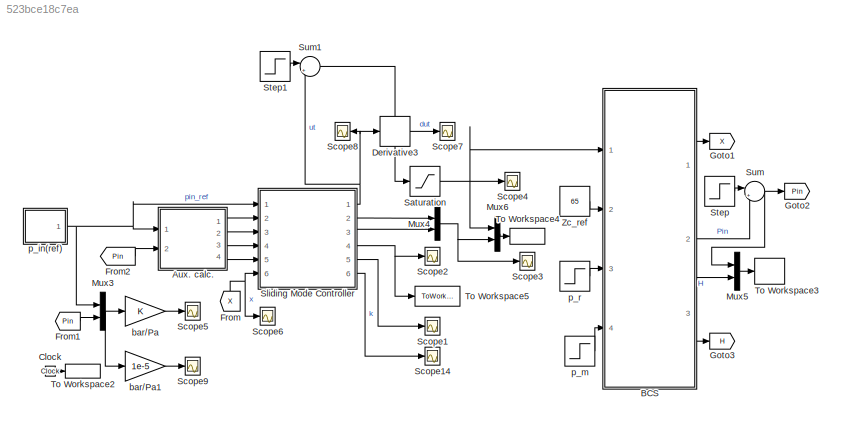
MODEL slx_523bce18c7ea
KIND model
CONFIG AbsTol = auto
CONFIG EnableMultiTasking = off
CONFIG FixedStep = 0.1
CONFIG MaxStep = auto
CONFIG MinStep = auto
CONFIG RelTol = 1e-3
CONFIG SampleTimeConstraint = Unconstrained
CONFIG Solver = FixedStepAuto
CONFIG SolverName = FixedStepAuto
CONFIG StartTime = 0.0
CONFIG StopTime = 10000
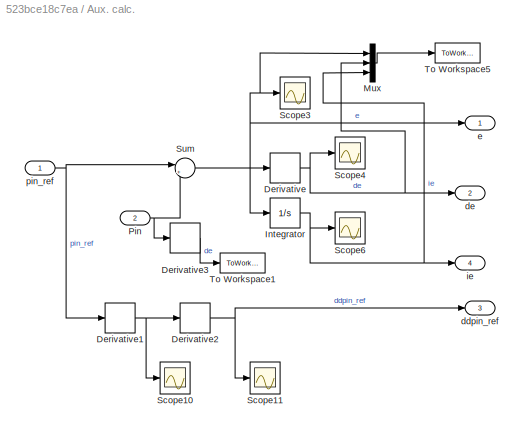
BLOCK [SubSystem] Aux. calc.
  Ports = [2, 4]
  RequestExecContextInheritance = off
BLOCK [Derivative] Aux. calc./Derivative
BLOCK [Derivative] Aux. calc./Derivative1
BLOCK [Derivative] Aux. calc./Derivative2
BLOCK [Derivative] Aux. calc./Derivative3
BLOCK [Integrator] Aux. calc./Integrator
  Ports = [1, 1]
BLOCK [Mux] Aux. calc./Mux
  DisplayOption = bar
  Inputs = 3
  Ports = [3, 1]
BLOCK [Inport] Aux. calc./Pin
  Port = 2
BLOCK [Scope] Aux. calc./Scope10
  Floating = off
  NumInputPorts = 1
  Ports = [1]
  ScopeSpecificationString = Simulink.scopes.TimeScopeBlockCfg('CurrentConfiguration', extmgr.ConfigurationSet(extmgr.Configuration('Core','General UI',true),extmgr.Configuration('Core','Source UI',true),extmgr.Configuration('Sources','WiredSimulink',true,'DataLoggingVariableName','ScopeData2'),extmgr.Configuration('Visuals','Time Domain',true,'SerializedDisplays',{struct('MinYLimReal','-624.99999','MaxYLimReal','624.99999','...<+1455ch>
BLOCK [Scope] Aux. calc./Scope11
  Floating = off
  NumInputPorts = 1
  Ports = [1]
  ScopeSpecificationString = Simulink.scopes.TimeScopeBlockCfg('CurrentConfiguration', extmgr.ConfigurationSet(extmgr.Configuration('Core','General UI',true),extmgr.Configuration('Core','Source UI',true),extmgr.Configuration('Sources','WiredSimulink',true,'DataLoggingVariableName','ScopeData3'),extmgr.Configuration('Visuals','Time Domain',true,'SerializedDisplays',{struct('MinYLimReal','-62.52813','MaxYLimReal','562.50312','Y...<+1476ch>
BLOCK [Scope] Aux. calc./Scope3
  Floating = off
  NumInputPorts = 1
  Ports = [1]
  ScopeSpecificationString = Simulink.scopes.TimeScopeBlockCfg('CurrentConfiguration', extmgr.ConfigurationSet(extmgr.Configuration('Core','General UI',true),extmgr.Configuration('Core','Source UI',true),extmgr.Configuration('Sources','WiredSimulink',true,'DataLoggingVariableName','ScopeData3'),extmgr.Configuration('Visuals','Time Domain',true,'SerializedDisplays',{struct('MinYLimReal','-4758.81706','MaxYLimReal','2088.00823'...<+1483ch>
BLOCK [Scope] Aux. calc./Scope4
  Floating = off
  NumInputPorts = 1
  Ports = [1]
  ScopeSpecificationString = Simulink.scopes.TimeScopeBlockCfg('CurrentConfiguration', extmgr.ConfigurationSet(extmgr.Configuration('Core','General UI',true),extmgr.Configuration('Core','Source UI',true),extmgr.Configuration('Sources','WiredSimulink',true,'DataLoggingVariableName','ScopeData4'),extmgr.Configuration('Visuals','Time Domain',true,'SerializedDisplays',{struct('MinYLimReal','-8383.61373','MaxYLimReal','10398.90583...<+1490ch>
BLOCK [Scope] Aux. calc./Scope6
  Floating = off
  NumInputPorts = 1
  Ports = [1]
  ScopeSpecificationString = Simulink.scopes.TimeScopeBlockCfg('CurrentConfiguration', extmgr.ConfigurationSet(extmgr.Configuration('Core','General UI',true),extmgr.Configuration('Core','Source UI',true),extmgr.Configuration('Sources','WiredSimulink',true,'DataLoggingVariableName','ScopeData6'),extmgr.Configuration('Visuals','Time Domain',true,'SerializedDisplays',{struct('MinYLimReal','-35625050.92727','MaxYLimReal','4862269...<+1487ch>
BLOCK [Sum] Aux. calc./Sum
  Inputs = |+-
  Ports = [2, 1]
BLOCK [ToWorkspace] Aux. calc./To Workspace1
  FixptAsFi = on
  MaxDataPoints = inf
  Ports = [1]
  SampleTime = -1
  VariableName = dpin
BLOCK [ToWorkspace] Aux. calc./To Workspace5
  FixptAsFi = on
  MaxDataPoints = inf
  Ports = [1]
  SampleTime = -1
  VariableName = edeie
BLOCK [Outport] Aux. calc./ddpin_ref
  Port = 3
BLOCK [Outport] Aux. calc./de
  Port = 2
BLOCK [Outport] Aux. calc./e
BLOCK [Outport] Aux. calc./ie
  Port = 4
BLOCK [Inport] Aux. calc./pin_ref
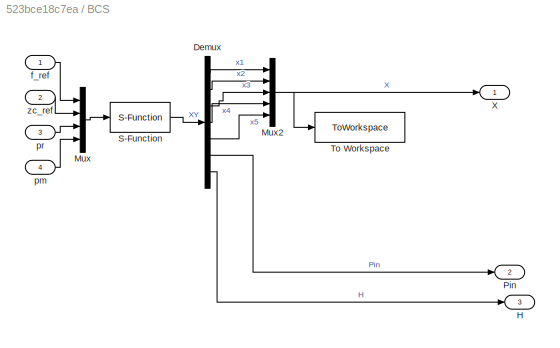
BLOCK [SubSystem] BCS
  Ports = [4, 3]
  RequestExecContextInheritance = off
BLOCK [Demux] BCS/Demux
  NameLocation = top
  Outputs = 7
  Ports = [1, 7]
BLOCK [Outport] BCS/H
  Port = 3
BLOCK [Mux] BCS/Mux
  DisplayOption = bar
  Ports = [4, 1]
BLOCK [Mux] BCS/Mux2
  DisplayOption = bar
  Inputs = 5
  NameLocation = top
  Ports = [5, 1]
BLOCK [Outport] BCS/Pin
  Port = 2
BLOCK [S-Function] BCS/S-Function
  EnableBusSupport = off
  FunctionName = BcsPlant
  Ports = [1, 1]
  SFcnIsStateOwnerBlock = off
  SFunctionDeploymentMode = off
BLOCK [ToWorkspace] BCS/To Workspace
  FixptAsFi = on
  MaxDataPoints = inf
  Ports = [1]
  SampleTime = -1
  VariableName = X
BLOCK [Outport] BCS/X
BLOCK [Inport] BCS/f_ref
BLOCK [Inport] BCS/pm
  Port = 4
BLOCK [Inport] BCS/pr
  Port = 3
BLOCK [Inport] BCS/zc_ref
  Port = 2
BLOCK [Clock] Clock
  Decimation = 15
BLOCK [Derivative] Derivative3
BLOCK [From] From
  GotoTag = X
  NameLocation = right
BLOCK [From] From1
  GotoTag = Pin
BLOCK [From] From2
  GotoTag = Pin
BLOCK [Goto] Goto1
  GotoTag = X
BLOCK [Goto] Goto2
  GotoTag = Pin
BLOCK [Goto] Goto3
  GotoTag = H
BLOCK [Mux] Mux3
  DisplayOption = bar
  Inputs = 2
  Ports = [2, 1]
BLOCK [Mux] Mux4
  DisplayOption = bar
  Inputs = 2
  Ports = [2, 1]
BLOCK [Mux] Mux5
  DisplayOption = bar
  Inputs = 2
  Ports = [2, 1]
BLOCK [Mux] Mux6
  DisplayOption = bar
  Inputs = 2
  Ports = [2, 1]
BLOCK [Saturate] Saturation
  LowerLimit = 35
  UpperLimit = 65
BLOCK [Scope] Scope1
  Floating = off
  NumInputPorts = 1
  Ports = [1]
  ScopeSpecificationString = Simulink.scopes.TimeScopeBlockCfg('CurrentConfiguration', extmgr.ConfigurationSet(extmgr.Configuration('Core','General UI',true),extmgr.Configuration('Core','Source UI',true),extmgr.Configuration('Sources','WiredSimulink',true,'DataLoggingVariableName','ScopeData1'),extmgr.Configuration('Visuals','Time Domain',true,'SerializedDisplays',{struct('MinYLimReal','-1282550360.99885','MaxYLimReal','17511...<+1519ch>
BLOCK [Scope] Scope14
  Floating = off
  NumInputPorts = 1
  Ports = [1]
  ScopeSpecificationString = Simulink.scopes.TimeScopeBlockCfg('CurrentConfiguration', extmgr.ConfigurationSet(extmgr.Configuration('Core','General UI',true),extmgr.Configuration('Core','Source UI',true),extmgr.Configuration('Sources','WiredSimulink',true,'DataLoggingVariableName','ScopeData1'),extmgr.Configuration('Visuals','Time Domain',true,'SerializedDisplays',{struct('MinYLimReal','126101.98903','MaxYLimReal','1137667.96...<+1471ch>
BLOCK [Scope] Scope2
  Floating = off
  NumInputPorts = 1
  Ports = [1]
  ScopeSpecificationString = Simulink.scopes.TimeScopeBlockCfg('CurrentConfiguration', extmgr.ConfigurationSet(extmgr.Configuration('Core','General UI',true),extmgr.Configuration('Core','Source UI',true),extmgr.Configuration('Sources','WiredSimulink',true,'DataLoggingVariableName','ScopeData2'),extmgr.Configuration('Visuals','Time Domain',true,'SerializedDisplays',{struct('MinYLimReal','-41192.74055','MaxYLimReal','21763.3256...<+1511ch>
BLOCK [Scope] Scope3
  Floating = off
  NumInputPorts = 1
  Ports = [1]
  ScopeSpecificationString = Simulink.scopes.TimeScopeBlockCfg('CurrentConfiguration', extmgr.ConfigurationSet(extmgr.Configuration('Core','General UI',true),extmgr.Configuration('Core','Source UI',true),extmgr.Configuration('Sources','WiredSimulink',true,'DataLoggingVariableName','ScopeData3'),extmgr.Configuration('Visuals','Time Domain',true,'SerializedDisplays',{struct('MinYLimReal','-24.51771','MaxYLimReal','86.68287','YL...<+1499ch>
BLOCK [Scope] Scope4
  Floating = off
  NumInputPorts = 1
  Ports = [1]
  ScopeSpecificationString = Simulink.scopes.TimeScopeBlockCfg('CurrentConfiguration', extmgr.ConfigurationSet(extmgr.Configuration('Core','General UI',true),extmgr.Configuration('Core','Source UI',true),extmgr.Configuration('Sources','WiredSimulink',true,'DataLoggingVariableName','ScopeData4'),extmgr.Configuration('Visuals','Time Domain',true,'SerializedDisplays',{struct('MinYLimReal','36.15121','MaxYLimReal','68.20542','YLa...<+1444ch>
BLOCK [Scope] Scope5
  Floating = off
  NumInputPorts = 1
  Ports = [1]
  ScopeSpecificationString = Simulink.scopes.TimeScopeBlockCfg('CurrentConfiguration', extmgr.ConfigurationSet(extmgr.Configuration('Core','General UI',true),extmgr.Configuration('Core','Source UI',true),extmgr.Configuration('Sources','WiredSimulink',true,'DataLoggingVariableName','ScopeData5'),extmgr.Configuration('Visuals','Time Domain',true,'SerializedDisplays',{struct('MinYLimReal','2824357.0704','MaxYLimReal','6670414.01...<+1539ch>
BLOCK [Scope] Scope6
  Floating = off
  NumInputPorts = 1
  Ports = [1]
  ScopeSpecificationString = Simulink.scopes.TimeScopeBlockCfg('CurrentConfiguration', extmgr.ConfigurationSet(extmgr.Configuration('Core','General UI',true),extmgr.Configuration('Core','Source UI',true),extmgr.Configuration('Sources','WiredSimulink',true,'DataLoggingVariableName','ScopeData6'),extmgr.Configuration('Visuals','Time Domain',true,'SerializedDisplays',{struct('MinYLimReal','622579.33004','MaxYLimReal','1600539.27...<+1642ch>
BLOCK [Scope] Scope7
  Floating = off
  NumInputPorts = 1
  Ports = [1]
  ScopeSpecificationString = Simulink.scopes.TimeScopeBlockCfg('CurrentConfiguration', extmgr.ConfigurationSet(extmgr.Configuration('Core','General UI',true),extmgr.Configuration('Core','Source UI',true),extmgr.Configuration('Sources','WiredSimulink',true,'DataLoggingVariableName','ScopeData7'),extmgr.Configuration('Visuals','Time Domain',true,'SerializedDisplays',{struct('MinYLimReal','-68.90768','MaxYLimReal','104.43876','Y...<+1441ch>
BLOCK [Scope] Scope8
  Floating = off
  NumInputPorts = 1
  Ports = [1]
  ScopeSpecificationString = Simulink.scopes.TimeScopeBlockCfg('CurrentConfiguration', extmgr.ConfigurationSet(extmgr.Configuration('Core','General UI',true),extmgr.Configuration('Core','Source UI',true),extmgr.Configuration('Sources','WiredSimulink',true,'DataLoggingVariableName','ScopeData8'),extmgr.Configuration('Visuals','Time Domain',true,'SerializedDisplays',{struct('MinYLimReal','-160.72607','MaxYLimReal','87.98813','Y...<+1442ch>
BLOCK [Scope] Scope9
  Floating = off
  NumInputPorts = 1
  Ports = [1]
  ScopeSpecificationString = Simulink.scopes.TimeScopeBlockCfg('CurrentConfiguration', extmgr.ConfigurationSet(extmgr.Configuration('Core','General UI',true),extmgr.Configuration('Core','Source UI',true),extmgr.Configuration('Sources','WiredSimulink',true,'DataLoggingVariableName','ScopeData1'),extmgr.Configuration('Visuals','Time Domain',true,'SerializedDisplays',{struct('MinYLimReal','28.68043','MaxYLimReal','66.18773','YLa...<+1500ch>
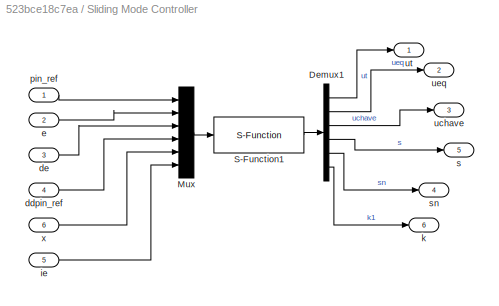
BLOCK [SubSystem] Sliding Mode Controller
  Ports = [6, 6]
  RequestExecContextInheritance = off
BLOCK [Demux] Sliding Mode Controller/Demux1
  Outputs = 6
  Ports = [1, 6]
BLOCK [Mux] Sliding Mode Controller/Mux
  DisplayOption = bar
  Inputs = 6
  Ports = [6, 1]
BLOCK [S-Function] Sliding Mode Controller/S-Function1
  EnableBusSupport = off
  FunctionName = ControlSMRG
  Parameters = PI_n,rho_n,mu_n,lambda,delta,eta,IN
  Ports = [1, 1]
  SFcnIsStateOwnerBlock = off
  SFunctionDeploymentMode = off
BLOCK [Inport] Sliding Mode Controller/ddpin_ref
  Port = 4
BLOCK [Inport] Sliding Mode Controller/de
  Port = 3
BLOCK [Inport] Sliding Mode Controller/e
  Port = 2
BLOCK [Inport] Sliding Mode Controller/ie
  Port = 5
BLOCK [Outport] Sliding Mode Controller/k
  Port = 6
BLOCK [Inport] Sliding Mode Controller/pin_ref
BLOCK [Outport] Sliding Mode Controller/s
  Port = 5
BLOCK [Outport] Sliding Mode Controller/sn
  Port = 4
BLOCK [Outport] Sliding Mode Controller/uchave
  Port = 3
BLOCK [Outport] Sliding Mode Controller/ueq
  Port = 2
BLOCK [Outport] Sliding Mode Controller/ut
BLOCK [Inport] Sliding Mode Controller/x
  Port = 6
BLOCK [Step] Step
  After = 1e5
  SampleTime = 0
  Time = 11000
BLOCK [Step] Step1
  After = 8
  SampleTime = 0
  Time = 11000
BLOCK [Sum] Sum
  Inputs = |++
  Ports = [2, 1]
BLOCK [Sum] Sum1
  Inputs = |++
  Ports = [2, 1]
BLOCK [ToWorkspace] To Workspace2
  MaxDataPoints = inf
  Ports = [1]
  SampleTime = -1
  Save2DSignal = 2-D array (concatenate along first dimension)
  VariableName = time
BLOCK [ToWorkspace] To Workspace3
  FixptAsFi = on
  MaxDataPoints = inf
  Ports = [1]
  SampleTime = -1
  VariableName = Y
BLOCK [ToWorkspace] To Workspace4
  FixptAsFi = on
  MaxDataPoints = inf
  Ports = [1]
  SampleTime = -1
  VariableName = U
BLOCK [ToWorkspace] To Workspace5
  FixptAsFi = on
  MaxDataPoints = inf
  Ports = [1]
  SampleTime = -1
  VariableName = Sn
BLOCK [Constant] Zc_ref
  Value = 65
BLOCK [Gain] bar//Pa
BLOCK [Gain] bar//Pa1
  Gain = 1e-5
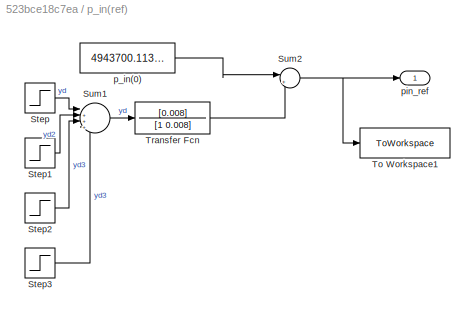
BLOCK [SubSystem] p_in(ref)
  Ports = [0, 1]
  RequestExecContextInheritance = off
BLOCK [Step] p_in(ref)/Step
  After = -17e5
  SampleTime = 0
  Time = 500
BLOCK [Step] p_in(ref)/Step1
  After = 8e5
  SampleTime = 0
  Time = 2500
BLOCK [Step] p_in(ref)/Step2
  After = 13e5
  SampleTime = 0
  Time = 5000
BLOCK [Step] p_in(ref)/Step3
  After = 9e5
  SampleTime = 0
  Time = 8000
BLOCK [Sum] p_in(ref)/Sum1
  Inputs = |++++
  Ports = [4, 1]
BLOCK [Sum] p_in(ref)/Sum2
  Inputs = |++
  Ports = [2, 1]
BLOCK [ToWorkspace] p_in(ref)/To Workspace1
  FixptAsFi = on
  MaxDataPoints = inf
  Ports = [1]
  SampleTime = -1
  VariableName = URef
BLOCK [TransferFcn] p_in(ref)/Transfer Fcn
  Denominator = [1 0.008]
  Numerator = [0.008]
BLOCK [Constant] p_in(ref)/p_in(0)
  Value = 4943700.11323205
BLOCK [Outport] p_in(ref)/pin_ref
BLOCK [Step] p_m
  After = 2e6
  Before = 2e5
  SampleTime = 0
  Time = 11000
BLOCK [Step] p_r
  After = 1.20e7
  Before = 1.26e7
  SampleTime = 0
  Time = 11000
NET Aux. calc./Derivative1:1 -> Aux. calc./Derivative2:1, Aux. calc./Scope10:1
NET Aux. calc./Derivative2:1 -> Aux. calc./Scope11:1, Aux. calc./ddpin_ref:1
LINE Aux. calc./Derivative3:1 -> Aux. calc./To Workspace1:1
NET Aux. calc./Derivative:1 -> Aux. calc./Mux:2, Aux. calc./Scope4:1, Aux. calc./de:1
NET Aux. calc./Integrator:1 -> Aux. calc./Mux:3, Aux. calc./Scope6:1, Aux. calc./ie:1
LINE Aux. calc./Mux:1 -> Aux. calc./To Workspace5:1
NET Aux. calc./Pin:1 -> Aux. calc./Derivative3:1, Aux. calc./Sum:2
NET Aux. calc./Sum:1 -> Aux. calc./Derivative:1, Aux. calc./Integrator:1, Aux. calc./Mux:1, Aux. calc./Scope3:1, Aux. calc./e:1
NET Aux. calc./pin_ref:1 -> Aux. calc./Derivative1:1, Aux. calc./Sum:1
LINE Aux. calc.:1 -> Sliding Mode Controller:2
LINE Aux. calc.:2 -> Sliding Mode Controller:3
LINE Aux. calc.:3 -> Sliding Mode Controller:4
LINE Aux. calc.:4 -> Sliding Mode Controller:5
LINE BCS/Demux:1 -> BCS/Mux2:1
LINE BCS/Demux:2 -> BCS/Mux2:2
LINE BCS/Demux:3 -> BCS/Mux2:3
LINE BCS/Demux:4 -> BCS/Mux2:4
LINE BCS/Demux:5 -> BCS/Mux2:5
LINE BCS/Demux:6 -> BCS/Pin:1
LINE BCS/Demux:7 -> BCS/H:1
NET BCS/Mux2:1 -> BCS/To Workspace:1, BCS/X:1
LINE BCS/Mux:1 -> BCS/S-Function:1
LINE BCS/S-Function:1 -> BCS/Demux:1
LINE BCS/f_ref:1 -> BCS/Mux:1
LINE BCS/pm:1 -> BCS/Mux:4
LINE BCS/pr:1 -> BCS/Mux:3
LINE BCS/zc_ref:1 -> BCS/Mux:2
LINE BCS:1 -> Goto1:1
LINE BCS:2 -> Sum:2
NET BCS:3 -> Goto3:1, Mux5:2
LINE Clock:1 -> To Workspace2:1
LINE Derivative3:1 -> Scope7:1
LINE From1:1 -> Mux3:2
LINE From2:1 -> Aux. calc.:2
NET From:1 -> Scope6:1, Sliding Mode Controller:6
NET Mux3:1 -> bar//Pa1:1, bar//Pa:1
NET Mux4:1 -> Mux6:2, Scope3:1
LINE Mux5:1 -> To Workspace3:1
LINE Mux6:1 -> To Workspace4:1
NET Saturation:1 -> BCS:1, Mux6:1, Scope4:1
LINE Sliding Mode Controller/Demux1:1 -> Sliding Mode Controller/ut:1
LINE Sliding Mode Controller/Demux1:2 -> Sliding Mode Controller/ueq:1
LINE Sliding Mode Controller/Demux1:3 -> Sliding Mode Controller/uchave:1
LINE Sliding Mode Controller/Demux1:4 -> Sliding Mode Controller/s:1
LINE Sliding Mode Controller/Demux1:5 -> Sliding Mode Controller/sn:1
LINE Sliding Mode Controller/Demux1:6 -> Sliding Mode Controller/k:1
LINE Sliding Mode Controller/Mux:1 -> Sliding Mode Controller/S-Function1:1
LINE Sliding Mode Controller/S-Function1:1 -> Sliding Mode Controller/Demux1:1
LINE Sliding Mode Controller/ddpin_ref:1 -> Sliding Mode Controller/Mux:4
LINE Sliding Mode Controller/de:1 -> Sliding Mode Controller/Mux:3
LINE Sliding Mode Controller/e:1 -> Sliding Mode Controller/Mux:2
LINE Sliding Mode Controller/ie:1 -> Sliding Mode Controller/Mux:6
LINE Sliding Mode Controller/pin_ref:1 -> Sliding Mode Controller/Mux:1
LINE Sliding Mode Controller/x:1 -> Sliding Mode Controller/Mux:5
NET Sliding Mode Controller:1 -> Derivative3:1, Scope8:1, Sum1:2
LINE Sliding Mode Controller:2 -> Mux4:1
LINE Sliding Mode Controller:3 -> Mux4:2
NET Sliding Mode Controller:4 -> Scope2:1, To Workspace5:1
LINE Sliding Mode Controller:5 -> Scope1:1
LINE Sliding Mode Controller:6 -> Scope14:1
LINE Step1:1 -> Sum1:1
LINE Step:1 -> Sum:1
LINE Sum1:1 -> Saturation:1
NET Sum:1 -> Goto2:1, Mux5:1
LINE Zc_ref:1 -> BCS:2
LINE bar//Pa1:1 -> Scope9:1
LINE bar//Pa:1 -> Scope5:1
LINE p_in(ref)/Step1:1 -> p_in(ref)/Sum1:2
LINE p_in(ref)/Step2:1 -> p_in(ref)/Sum1:3
LINE p_in(ref)/Step3:1 -> p_in(ref)/Sum1:4
LINE p_in(ref)/Step:1 -> p_in(ref)/Sum1:1
LINE p_in(ref)/Sum1:1 -> p_in(ref)/Transfer Fcn:1
NET p_in(ref)/Sum2:1 -> p_in(ref)/To Workspace1:1, p_in(ref)/pin_ref:1
LINE p_in(ref)/Transfer Fcn:1 -> p_in(ref)/Sum2:2
LINE p_in(ref)/p_in(0):1 -> p_in(ref)/Sum2:1
NET p_in(ref):1 -> Aux. calc.:1, Mux3:1, Sliding Mode Controller:1
LINE p_m:1 -> BCS:4
LINE p_r:1 -> BCS:3
note: NET lines group one-source signal fan-out (src -> all destinations, sorted); 1:1 wires keep LINE
